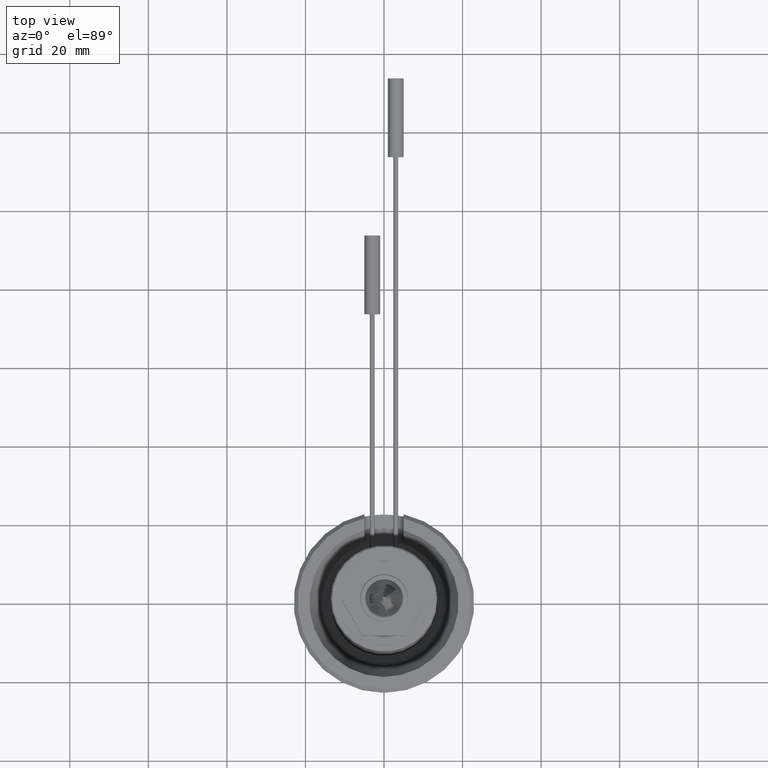
[diagram: clean part render]
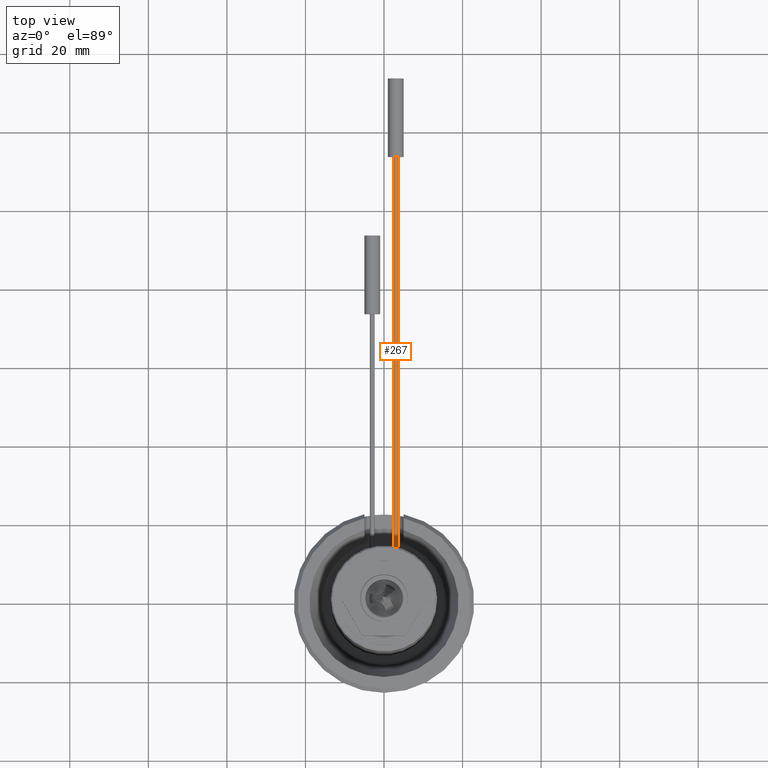
[diagram: same view with one face highlighted and labeled with its STEP entity id]
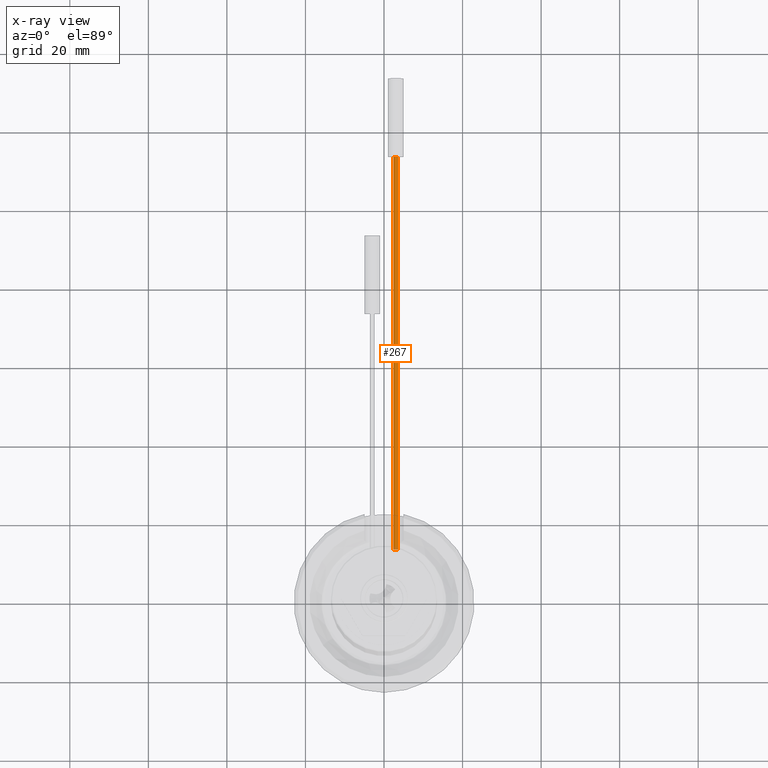
[diagram: x-ray of the same camera — body ghosted, the highlighted face saturated]
A machine part, top view. The second image highlights one B-rep face of the part: STEP entity #267.
The next image is the same camera in x-ray: the body ghosted, the highlighted face saturated — about 1% of this face is hidden behind the body in this view.
In plain terms, the highlighted cylindrical surface (bore or boss wall) has radius 0.6 mm, axis along (0, -1, 0).
Its self-contained STEP definition (entity closure, byte-faithful):
#267=ADVANCED_FACE('',(#365,#366),#342,.T.);
#342=CYLINDRICAL_SURFACE('',#1111,0.6);
#365=FACE_BOUND('',#427,.T.);
#366=FACE_BOUND('',#428,.T.);
#427=EDGE_LOOP('',(#534));
#428=EDGE_LOOP('',(#535));
#534=ORIENTED_EDGE('',*,*,#894,.F.);
#535=ORIENTED_EDGE('',*,*,#895,.T.);
#796=VERTEX_POINT('',#1581);
#797=VERTEX_POINT('',#1583);
#894=EDGE_CURVE('',#796,#796,#1025,.T.);
#895=EDGE_CURVE('',#797,#797,#1026,.T.);
#1025=CIRCLE('',#1109,0.6);
#1026=CIRCLE('',#1110,0.6);
#1109=AXIS2_PLACEMENT_3D('',#1580,#1252,#1253);
#1110=AXIS2_PLACEMENT_3D('',#1582,#1254,#1255);
#1111=AXIS2_PLACEMENT_3D('',#1584,#1256,#1257);
#1252=DIRECTION('',(0.,1.,0.));
#1253=DIRECTION('',(1.,0.,0.));
#1254=DIRECTION('',(0.,1.,0.));
#1255=DIRECTION('',(1.,0.,0.));
#1256=DIRECTION('',(0.,-1.,0.));
#1257=DIRECTION('',(0.,0.,-1.));
#1580=CARTESIAN_POINT('',(3.,113.5,18.5));
#1581=CARTESIAN_POINT('',(3.6,113.5,18.5));
#1582=CARTESIAN_POINT('',(3.,13.5,18.5));
#1583=CARTESIAN_POINT('',(3.6,13.5,18.5));
#1584=CARTESIAN_POINT('',(3.,113.5,18.5));